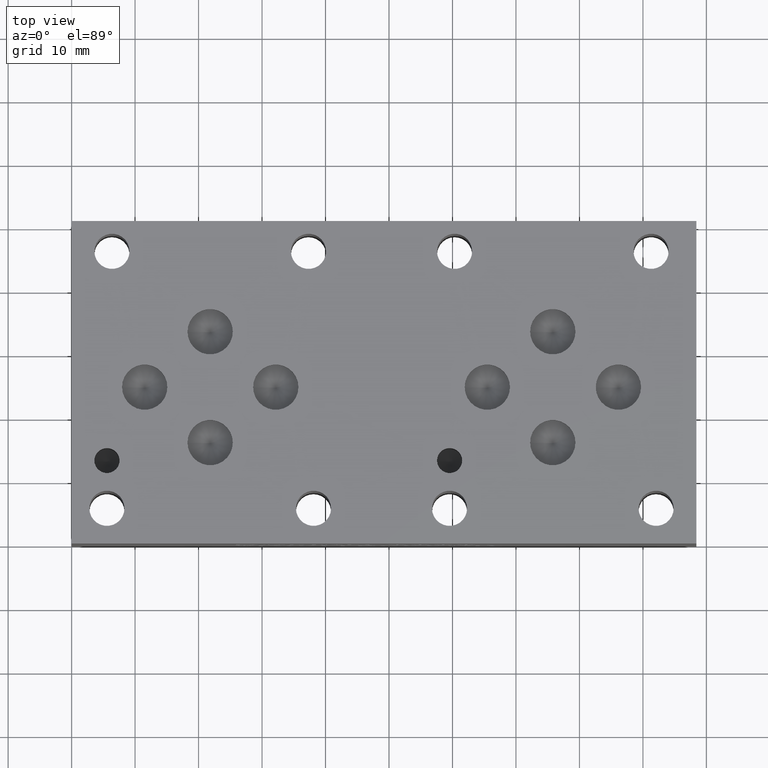
[diagram: clean part render]
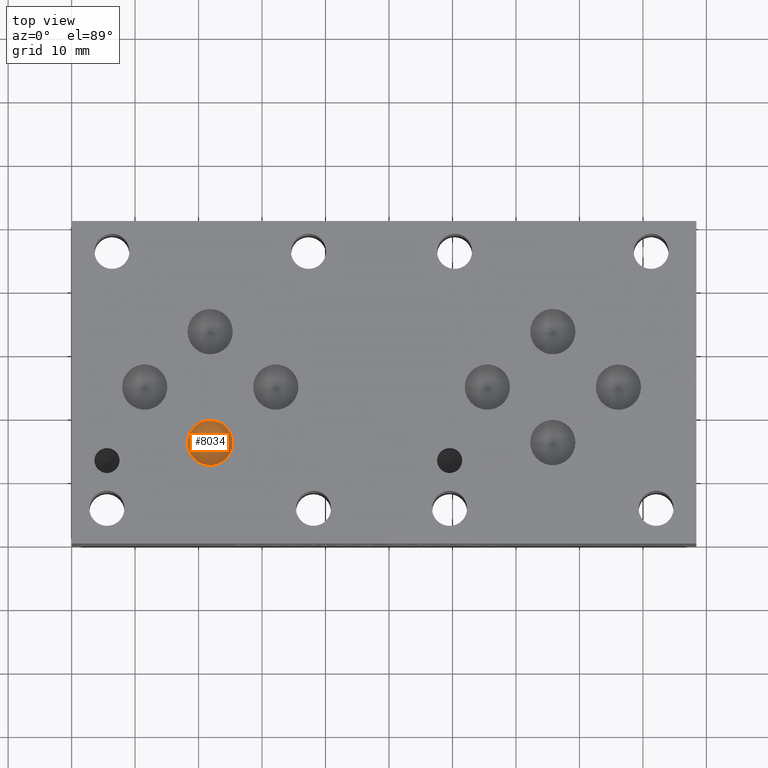
[diagram: same view with one face highlighted and labeled with its STEP entity id]
A machine part, top view. The second image highlights one B-rep face of the part: STEP entity #8034.
In plain terms, the highlighted conical surface has half-angle 60 deg.
Its self-contained STEP definition (entity closure, byte-faithful):
#127=CIRCLE('',#8438,3.5687);
#157=CONICAL_SURFACE('',#8437,1.78435,1.0471975511966);
#957=FACE_OUTER_BOUND('',#1430,.T.);
#1430=EDGE_LOOP('',(#6984,#6985,#6986));
#2241=LINE('',#13688,#3034);
#3034=VECTOR('',#9988,1.78435);
#3766=VERTEX_POINT('',#13685);
#3767=VERTEX_POINT('',#13687);
#4849=EDGE_CURVE('',#3766,#3766,#127,.T.);
#4850=EDGE_CURVE('',#3766,#3767,#2241,.T.);
#6984=ORIENTED_EDGE('',*,*,#4849,.T.);
#6985=ORIENTED_EDGE('',*,*,#4850,.T.);
#6986=ORIENTED_EDGE('',*,*,#4850,.F.);
#8034=ADVANCED_FACE('',(#957),#157,.F.);
#8437=AXIS2_PLACEMENT_3D('',#13684,#9984,#9985);
#8438=AXIS2_PLACEMENT_3D('',#13686,#9986,#9987);
#9984=DIRECTION('center_axis',(0.,0.,1.));
#9985=DIRECTION('ref_axis',(1.,0.,0.));
#9986=DIRECTION('center_axis',(0.,0.,1.));
#9987=DIRECTION('ref_axis',(1.,0.,0.));
#9988=DIRECTION('',(0.866025403784439,1.06057523872491E-16,-0.5));
#13684=CARTESIAN_POINT('Origin',(21.8186,15.875,28.6594150471715));
#13685=CARTESIAN_POINT('',(18.2499,15.875,29.68961));
#13686=CARTESIAN_POINT('Origin',(21.8186,15.875,29.68961));
#13687=CARTESIAN_POINT('',(21.8186,15.875,27.629220094343));
#13688=CARTESIAN_POINT('',(20.03425,15.875,28.6594150471715));